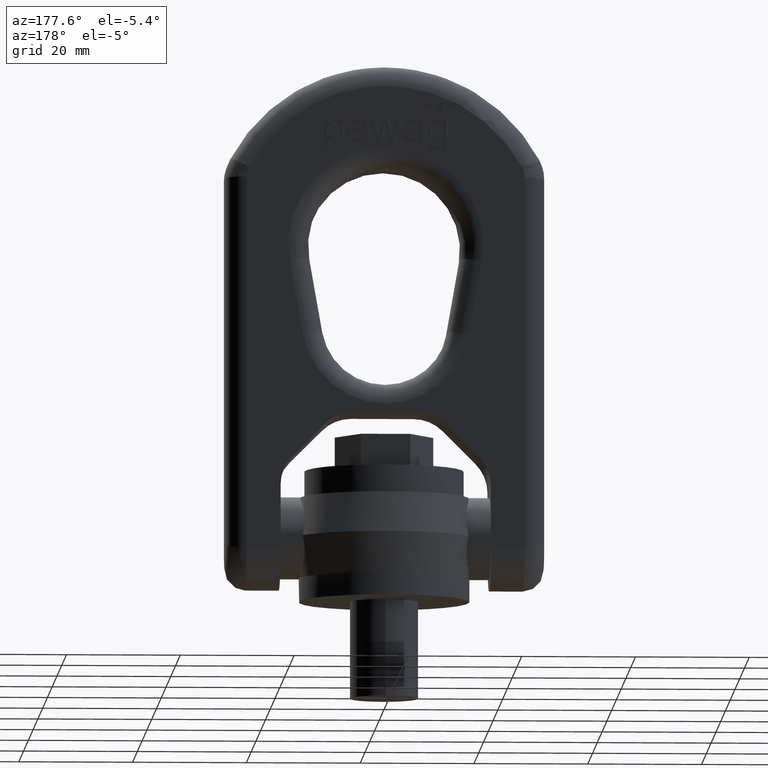
[diagram: clean part render]
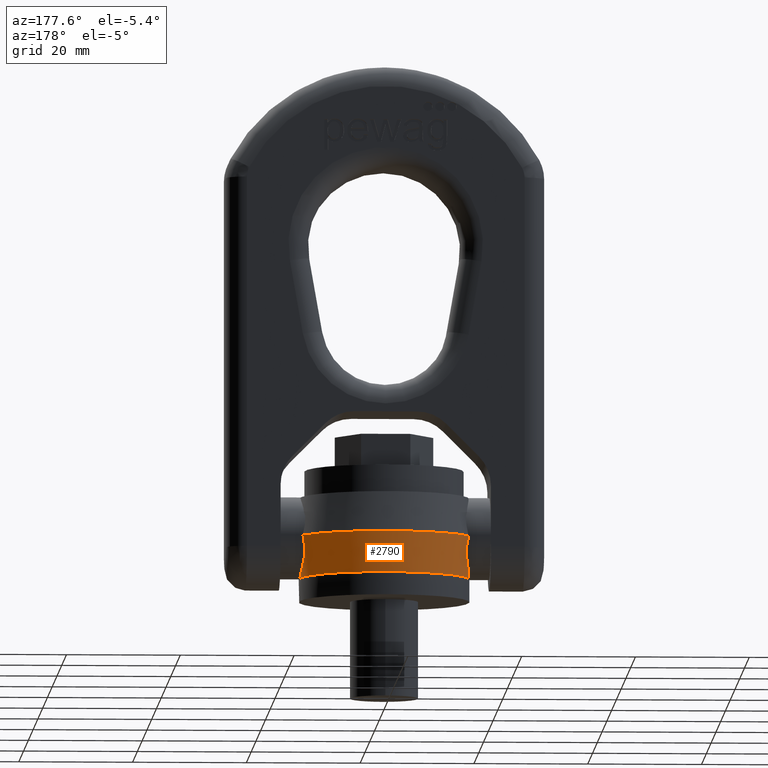
[diagram: same view with one face highlighted and labeled with its STEP entity id]
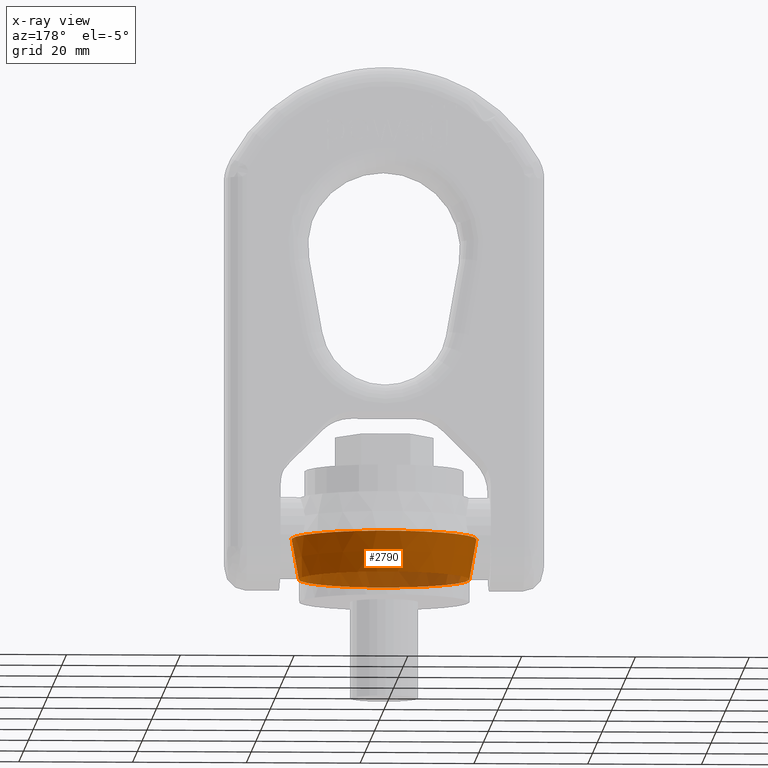
[diagram: x-ray of the same camera — body ghosted, the highlighted face saturated]
A machine part, auxiliary view. The second image highlights one B-rep face of the part: STEP entity #2790.
The next image is the same camera in x-ray: the body ghosted, the highlighted face saturated — about 22% of this face is hidden behind the body in this view.
In plain terms, the highlighted conical surface has half-angle 10 deg.
Its self-contained STEP definition (entity closure, byte-faithful):
#2435=CONICAL_SURFACE('',#5837,15.,10.);
#2790=ADVANCED_FACE('',(#3075,#3076),#2435,.T.);
#3075=FACE_BOUND('',#3144,.T.);
#3076=FACE_BOUND('',#3145,.T.);
#3144=EDGE_LOOP('',(#3440));
#3145=EDGE_LOOP('',(#3441));
#3440=ORIENTED_EDGE('',*,*,#5121,.T.);
#3441=ORIENTED_EDGE('',*,*,#5117,.F.);
#4697=VERTEX_POINT('',#6938);
#4701=VERTEX_POINT('',#6950);
#5117=EDGE_CURVE('',#4697,#4697,#5749,.T.);
#5121=EDGE_CURVE('',#4701,#4701,#5753,.T.);
#5749=CIRCLE('',#5828,15.);
#5753=CIRCLE('',#5836,16.2519215630301);
#5828=AXIS2_PLACEMENT_3D('',#6937,#6066,#6067);
#5836=AXIS2_PLACEMENT_3D('',#6949,#6082,#6083);
#5837=AXIS2_PLACEMENT_3D('',#6951,#6084,#6085);
#6066=DIRECTION('',(0.,0.,-1.));
#6067=DIRECTION('',(-1.,0.,0.));
#6082=DIRECTION('',(0.,0.,-1.));
#6083=DIRECTION('',(-1.,0.,0.));
#6084=DIRECTION('',(0.,0.,1.));
#6085=DIRECTION('',(1.,0.,1.81336000761973E-17));
#6937=CARTESIAN_POINT('',(0.,0.,4.));
#6938=CARTESIAN_POINT('',(-15.,0.,4.));
#6949=CARTESIAN_POINT('',(0.,0.,11.1));
#6950=CARTESIAN_POINT('',(-16.2519215630301,0.,11.1));
#6951=CARTESIAN_POINT('',(0.,0.,4.));